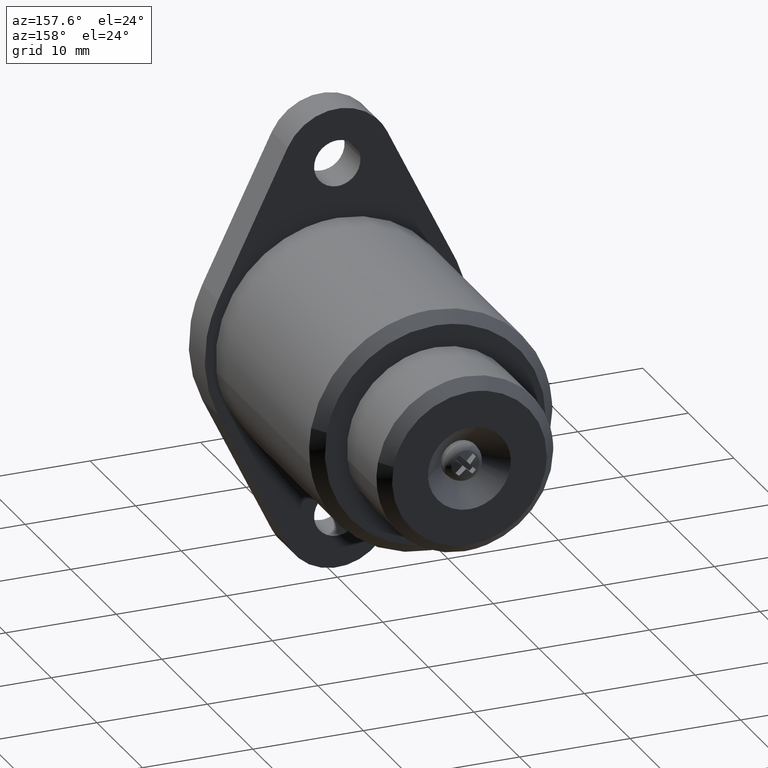
[diagram: clean part render]
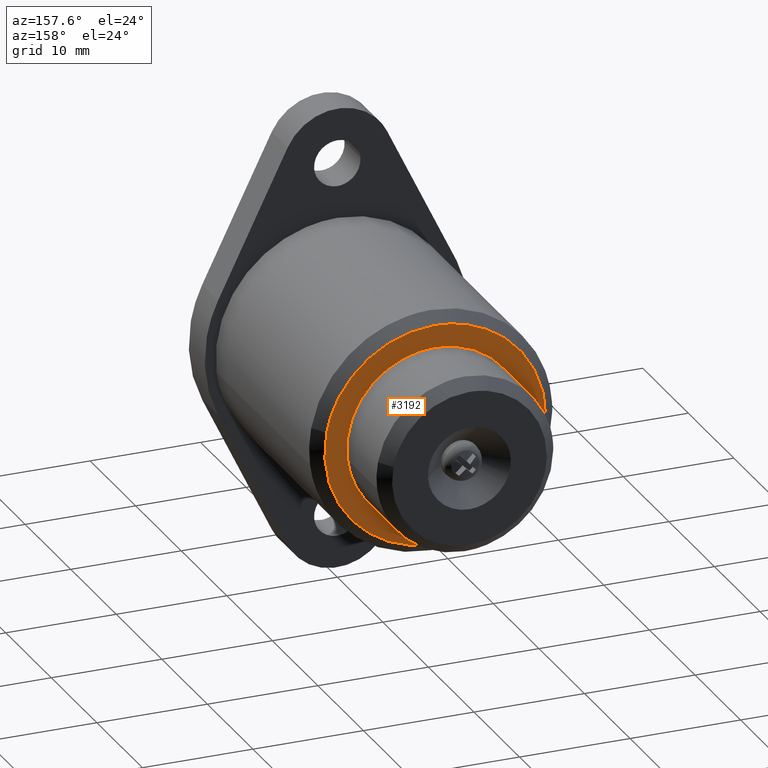
[diagram: same view with one face highlighted and labeled with its STEP entity id]
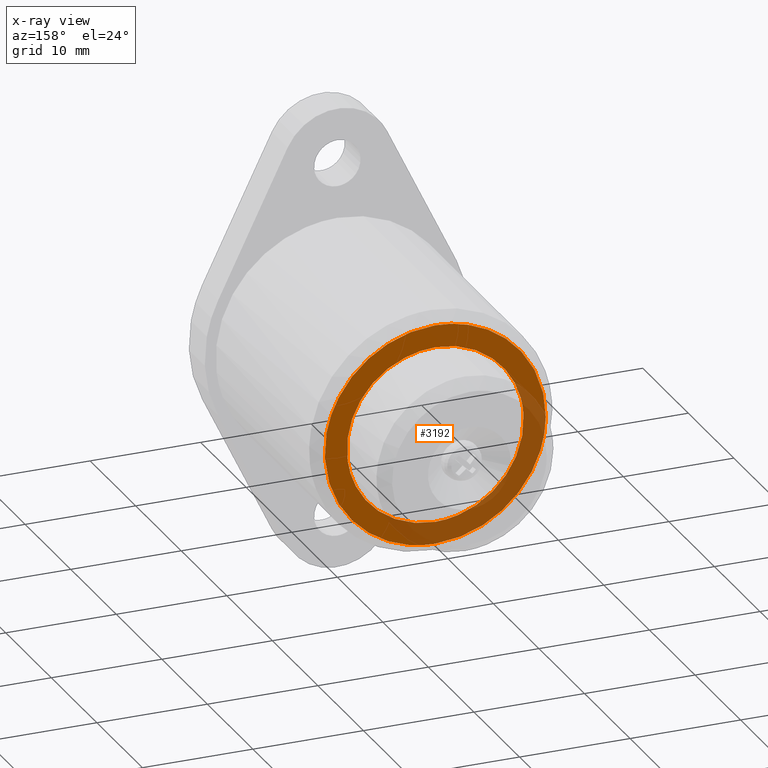
[diagram: x-ray of the same camera — body ghosted, the highlighted face saturated]
A machine part, auxiliary view. The second image highlights one B-rep face of the part: STEP entity #3192.
The next image is the same camera in x-ray: the body ghosted, the highlighted face saturated — about 35% of this face is hidden behind the body in this view.
In plain terms, the highlighted face is a freeform B-spline surface patch.
Its self-contained STEP definition (entity closure, byte-faithful):
#1570=CARTESIAN_POINT('',(9.830880782071240,21.499999999988891,1.831246763902347));
#1571=VERTEX_POINT('',#1570);
#1577=CARTESIAN_POINT('',(-0.000018141802190,21.500000000000000,10.000010474177200));
#1578=VERTEX_POINT('',#1577);
#1579=CARTESIAN_POINT('',(-0.000018141802190,21.500000000000000,10.000010474177200));
#1580=CARTESIAN_POINT('',(8.309256293287465,21.499999999999993,10.000010474177202));
#1581=CARTESIAN_POINT('',(9.830880782071240,21.499999999988894,1.831246763902348));
#1589=(BOUNDED_CURVE()B_SPLINE_CURVE(2,(#1579,#1580,#1581),.UNSPECIFIED.,.F.,.U.)B_SPLINE_CURVE_WITH_KNOTS((3,3),(0.0,0.218554736283732),.UNSPECIFIED.)CURVE()GEOMETRIC_REPRESENTATION_ITEM()RATIONAL_B_SPLINE_CURVE((1.0,0.743947199211730,0.935586817231390))REPRESENTATION_ITEM(''));
#1590=EDGE_CURVE('',#1578,#1571,#1589,.T.);
#1592=CARTESIAN_POINT('',(-9.999637372444413,21.499999999999449,-0.087254880810576));
#1593=VERTEX_POINT('',#1592);
#1594=CARTESIAN_POINT('',(-9.999637372444413,21.499999999999456,-0.087254880810576));
#1595=CARTESIAN_POINT('',(-10.000018141802190,21.500000000000004,-0.043623034033848));
#1596=CARTESIAN_POINT('',(-10.000018141802190,21.500000000000000,0.000010474177202));
#1597=CARTESIAN_POINT('',(-10.000018141802190,21.499999999999996,10.000010474177202));
#1598=CARTESIAN_POINT('',(-0.000018141802190,21.500000000000000,10.000010474177200));
#1606=(BOUNDED_CURVE()B_SPLINE_CURVE(2,(#1594,#1595,#1596,#1597,#1598),.UNSPECIFIED.,.F.,.U.)B_SPLINE_CURVE_WITH_KNOTS((3,2,3),(0.748460105664871,0.750000000000000,1.0),.UNSPECIFIED.)CURVE()GEOMETRIC_REPRESENTATION_ITEM()RATIONAL_B_SPLINE_CURVE((0.996414028100077,0.998195901566206,1.0,0.707106781186548,1.0))REPRESENTATION_ITEM(''));
#1607=EDGE_CURVE('',#1593,#1578,#1606,.T.);
#1717=CARTESIAN_POINT('',(-0.000018141802190,21.500000000000000,-9.999989525822798));
#1718=VERTEX_POINT('',#1717);
#1719=CARTESIAN_POINT('',(-0.000018141802190,21.500000000000000,-9.999989525822798));
#1720=CARTESIAN_POINT('',(-9.913130247744023,21.500000000000000,-9.999989525822802));
#1721=CARTESIAN_POINT('',(-9.999637372444413,21.499999999999449,-0.087254880810576));
#1729=(BOUNDED_CURVE()B_SPLINE_CURVE(2,(#1719,#1720,#1721),.UNSPECIFIED.,.F.,.U.)B_SPLINE_CURVE_WITH_KNOTS((3,3),(0.500000000000000,0.748460105664872),.UNSPECIFIED.)CURVE()GEOMETRIC_REPRESENTATION_ITEM()RATIONAL_B_SPLINE_CURVE((1.0,0.708910879620341,0.996414028100079))REPRESENTATION_ITEM(''));
#1730=EDGE_CURVE('',#1718,#1593,#1729,.T.);
#1732=CARTESIAN_POINT('',(9.830880782071240,21.499999999988894,1.831246763902348));
#1733=CARTESIAN_POINT('',(9.999981858197808,21.500000000000004,0.923436233567251));
#1734=CARTESIAN_POINT('',(9.999981858197810,21.500000000000000,0.000010474177202));
#1735=CARTESIAN_POINT('',(9.999981858197810,21.499999999999996,-9.999989525822798));
#1736=CARTESIAN_POINT('',(-0.000018141802190,21.500000000000000,-9.999989525822798));
#1744=(BOUNDED_CURVE()B_SPLINE_CURVE(2,(#1732,#1733,#1734,#1735,#1736),.UNSPECIFIED.,.F.,.U.)B_SPLINE_CURVE_WITH_KNOTS((3,2,3),(0.218554736283732,0.250000000000000,0.500000000000000),.UNSPECIFIED.)CURVE()GEOMETRIC_REPRESENTATION_ITEM()RATIONAL_B_SPLINE_CURVE((0.935586817231390,0.963159581974818,1.0,0.707106781186548,1.0))REPRESENTATION_ITEM(''));
#1745=EDGE_CURVE('',#1571,#1718,#1744,.T.);
#1776=CARTESIAN_POINT('',(-7.985096529174710,21.500000000000000,0.488398790495547));
#1777=VERTEX_POINT('',#1776);
#1783=CARTESIAN_POINT('',(-0.000018141802190,21.500000000000000,8.000010474177202));
#1784=VERTEX_POINT('',#1783);
#1785=CARTESIAN_POINT('',(-0.000018141802190,21.500000000000000,8.000010474177202));
#1786=CARTESIAN_POINT('',(-7.525666676973182,21.500000000000004,8.000010474177202));
#1787=CARTESIAN_POINT('',(-7.985096529174710,21.499999999999996,0.488398790495547));
#1795=(BOUNDED_CURVE()B_SPLINE_CURVE(2,(#1785,#1786,#1787),.UNSPECIFIED.,.F.,.U.)B_SPLINE_CURVE_WITH_KNOTS((3,3),(0.500000000000000,0.739332962240262),.UNSPECIFIED.)CURVE()GEOMETRIC_REPRESENTATION_ITEM()RATIONAL_B_SPLINE_CURVE((1.0,0.719603993285165,0.976072041669544))REPRESENTATION_ITEM(''));
#1796=EDGE_CURVE('',#1784,#1777,#1795,.T.);
#1798=CARTESIAN_POINT('',(7.944058069103263,21.500000000000000,-0.944263403109490));
#1799=VERTEX_POINT('',#1798);
#1800=CARTESIAN_POINT('',(7.944058069103263,21.500000000000000,-0.944263403109490));
#1801=CARTESIAN_POINT('',(7.999981858197810,21.499999999999993,-0.473782483071048));
#1802=CARTESIAN_POINT('',(7.999981858197810,21.500000000000000,0.000010474177202));
#1803=CARTESIAN_POINT('',(7.999981858197810,21.499999999999996,8.000010474177202));
#1804=CARTESIAN_POINT('',(-0.000018141802190,21.500000000000000,8.000010474177202));
#1812=(BOUNDED_CURVE()B_SPLINE_CURVE(2,(#1800,#1801,#1802,#1803,#1804),.UNSPECIFIED.,.F.,.U.)B_SPLINE_CURVE_WITH_KNOTS((3,2,3),(0.229562473514256,0.250000000000000,0.500000000000000),.UNSPECIFIED.)CURVE()GEOMETRIC_REPRESENTATION_ITEM()RATIONAL_B_SPLINE_CURVE((0.956026754185165,0.976055948332021,1.0,0.707106781186548,1.0))REPRESENTATION_ITEM(''));
#1813=EDGE_CURVE('',#1799,#1784,#1812,.T.);
#1843=CARTESIAN_POINT('',(-0.000018141802190,21.500000000000000,-7.999989525822797));
#1844=VERTEX_POINT('',#1843);
#1845=CARTESIAN_POINT('',(-0.000018141802190,21.500000000000000,-7.999989525822797));
#1846=CARTESIAN_POINT('',(7.105378065749977,21.500000000000000,-7.999989525822798));
#1847=CARTESIAN_POINT('',(7.944058069103263,21.500000000000004,-0.944263403109490));
#1855=(BOUNDED_CURVE()B_SPLINE_CURVE(2,(#1845,#1846,#1847),.UNSPECIFIED.,.F.,.U.)B_SPLINE_CURVE_WITH_KNOTS((3,3),(0.0,0.229562473514256),.UNSPECIFIED.)CURVE()GEOMETRIC_REPRESENTATION_ITEM()RATIONAL_B_SPLINE_CURVE((1.0,0.731050832854526,0.956026754185165))REPRESENTATION_ITEM(''));
#1856=EDGE_CURVE('',#1844,#1799,#1855,.T.);
#1858=CARTESIAN_POINT('',(-7.985096529174710,21.500000000000000,0.488398790495547));
#1859=CARTESIAN_POINT('',(-8.000018141802190,21.499999999999996,0.244432580605513));
#1860=CARTESIAN_POINT('',(-8.000018141802190,21.500000000000000,0.000010474177202));
#1861=CARTESIAN_POINT('',(-8.000018141802190,21.499999999999996,-7.999989525822797));
#1862=CARTESIAN_POINT('',(-0.000018141802190,21.500000000000000,-7.999989525822797));
#1870=(BOUNDED_CURVE()B_SPLINE_CURVE(2,(#1858,#1859,#1860,#1861,#1862),.UNSPECIFIED.,.F.,.U.)B_SPLINE_CURVE_WITH_KNOTS((3,2,3),(0.739332962240262,0.750000000000000,1.0),.UNSPECIFIED.)CURVE()GEOMETRIC_REPRESENTATION_ITEM()RATIONAL_B_SPLINE_CURVE((0.976072041669544,0.987502787901382,1.0,0.707106781186548,1.0))REPRESENTATION_ITEM(''));
#1871=EDGE_CURVE('',#1777,#1844,#1870,.T.);
#3175=CARTESIAN_POINT('',(-10.998599787794570,21.500000000000000,10.999010435413320));
#3176=CARTESIAN_POINT('',(10.998568332166419,21.500000000000000,10.999010435413320));
#3177=CARTESIAN_POINT('',(-10.998599787794570,21.500000000000000,-10.998990023500721));
#3178=CARTESIAN_POINT('',(10.998568332166419,21.500000000000000,-10.998990023500721));
#3179=B_SPLINE_SURFACE_WITH_KNOTS('',1,1,((#3175,#3177),(#3176,#3178)),.UNSPECIFIED.,.F.,.F.,.U.,(2,2),(2,2),(0.0,21.997168119960989),(0.0,21.998000458914039),.UNSPECIFIED.);
#3180=ORIENTED_EDGE('',*,*,#1590,.T.);
#3181=ORIENTED_EDGE('',*,*,#1745,.T.);
#3182=ORIENTED_EDGE('',*,*,#1730,.T.);
#3183=ORIENTED_EDGE('',*,*,#1607,.T.);
#3184=EDGE_LOOP('',(#3180,#3181,#3182,#3183));
#3185=FACE_OUTER_BOUND('',#3184,.T.);
#3186=ORIENTED_EDGE('',*,*,#1796,.T.);
#3187=ORIENTED_EDGE('',*,*,#1871,.T.);
#3188=ORIENTED_EDGE('',*,*,#1856,.T.);
#3189=ORIENTED_EDGE('',*,*,#1813,.T.);
#3190=EDGE_LOOP('',(#3186,#3187,#3188,#3189));
#3191=FACE_BOUND('',#3190,.T.);
#3192=ADVANCED_FACE('',(#3185,#3191),#3179,.T.);